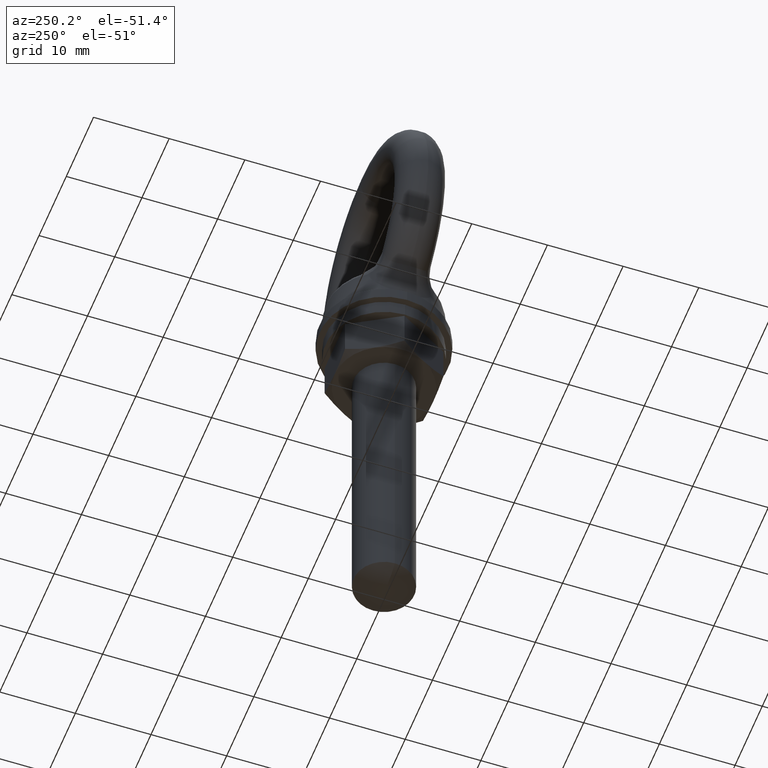
[diagram: clean part render]
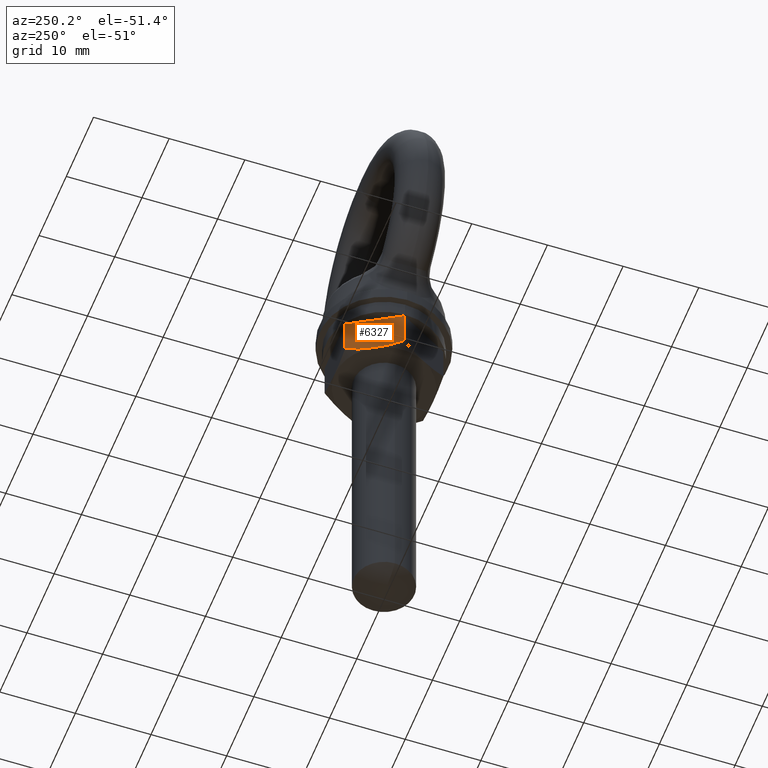
[diagram: same view with one face highlighted and labeled with its STEP entity id]
A machine part, auxiliary view. The second image highlights one B-rep face of the part: STEP entity #6327.
In plain terms, the highlighted planar face has unit normal (0.866, -0.5, 0).
Its self-contained STEP definition (entity closure, byte-faithful):
#21 = CARTESIAN_POINT ( 'NONE',  ( -3.752777000000000000, 6.500000000000000000, -25.51944234415325100 ) ) ;
#22 = CARTESIAN_POINT ( 'NONE',  ( -4.058962917549120400, 5.969670328293164900, -25.69621891020568300 ) ) ;
#23 = CARTESIAN_POINT ( 'NONE',  ( -4.367703386240748400, 5.434916043333029900, -25.84215141568065400 ) ) ;
#24 = CARTESIAN_POINT ( 'NONE',  ( -4.836380253384984200, 4.623143734930519800, -25.99384341492965700 ) ) ;
#25 = CARTESIAN_POINT ( 'NONE',  ( -4.993536284970479900, 4.350941449127765800, -26.03317350459036600 ) ) ;
#26 = CARTESIAN_POINT ( 'NONE',  ( -5.309965003255427100, 3.802870722590360900, -26.08627685027860800 ) ) ;
#27 = CARTESIAN_POINT ( 'NONE',  ( -5.469922194244476000, 3.525816685411266700, -26.09999906255262300 ) ) ;
#61 = CARTESIAN_POINT ( 'NONE',  ( -7.198600869568610800, 0.5316567916134915500, -25.69666159989901600 ) ) ;
#62 = CARTESIAN_POINT ( 'NONE',  ( -7.505552999999999900, 4.425311616899809600E-016, -25.51944270476554900 ) ) ;
#63 = CARTESIAN_POINT ( 'NONE',  ( -7.505552999999999900, 4.425311616899809600E-016, -25.51944270476554900 ) ) ;
#64 = B_SPLINE_CURVE_WITH_KNOTS ( 'NONE', 3,
 ( #62, #61, #73, #72, #71, #70 ),
 .UNSPECIFIED., .F., .F.,
 ( 4, 2, 4 ),
 ( 2.380732853425456700E-007, 0.001898835514487691100, 0.003797432955690040000 ),
 .UNSPECIFIED. ) ;
#65 = CARTESIAN_POINT ( 'NONE',  ( -5.629165405748550700, 3.249999513034385100, -26.09999900000000000 ) ) ;
#66 = CARTESIAN_POINT ( 'NONE',  ( -5.629165405748550700, 3.249999513034385100, -26.09999900000000000 ) ) ;
#69 = B_SPLINE_CURVE_WITH_KNOTS ( 'NONE', 3,
 ( #66, #27, #26, #25, #24, #23, #22, #21 ),
 .UNSPECIFIED., .F., .F.,
 ( 4, 2, 2, 4 ),
 ( 0.003797432955690040000, 0.004743183237692561600, 0.005688933519695082300, 0.007580434083700125400 ),
 .UNSPECIFIED. ) ;
#70 = CARTESIAN_POINT ( 'NONE',  ( -5.629165405748550700, 3.249999513034385100, -26.09999900000000000 ) ) ;
#71 = CARTESIAN_POINT ( 'NONE',  ( -5.948846516682197100, 2.696295260246219300, -26.09999906179119500 ) ) ;
#72 = CARTESIAN_POINT ( 'NONE',  ( -6.264553522101067500, 2.149474577311065700, -26.04466883029566300 ) ) ;
#73 = CARTESIAN_POINT ( 'NONE',  ( -6.889406537629291400, 1.067197190935371000, -25.84266372200051600 ) ) ;
#74 = LINE ( 'NONE', #108, #107 ) ;
#101 = DIRECTION ( 'NONE',  ( -0.4999999250822129700, -0.8660254470382388000, 0.0000000000000000000 ) ) ;
#102 = VECTOR ( 'NONE', #101, 1000.000000000000100 ) ;
#103 = CARTESIAN_POINT ( 'NONE',  ( -3.752777000000000000, 6.500000000000000000, -20.59999900000000000 ) ) ;
#104 = LINE ( 'NONE', #103, #102 ) ;
#105 = CARTESIAN_POINT ( 'NONE',  ( -7.505552999999999900, 0.0000000000000000000, -20.59999900000000000 ) ) ;
#106 = DIRECTION ( 'NONE',  ( 0.0000000000000000000, 0.0000000000000000000, -1.000000000000000000 ) ) ;
#107 = VECTOR ( 'NONE', #106, 1000.000000000000000 ) ;
#108 = CARTESIAN_POINT ( 'NONE',  ( -7.505552999999999900, 0.0000000000000000000, 973.9000009999999700 ) ) ;
#1770 = CARTESIAN_POINT ( 'NONE',  ( -3.752777000000000000, 6.500000000000000000, -20.59999900000000000 ) ) ;
#1771 = DIRECTION ( 'NONE',  ( 0.0000000000000000000, 0.0000000000000000000, -1.000000000000000000 ) ) ;
#1795 = FACE_OUTER_BOUND ( 'NONE', #6316, .T. ) ;
#1816 = CARTESIAN_POINT ( 'NONE',  ( -3.752777000000000000, 6.500000000000000000, 973.9000009999999700 ) ) ;
#1817 = AXIS2_PLACEMENT_3D ( 'NONE', #1816, #2318, #2316 ) ;
#1818 = PLANE ( 'NONE',  #1817 ) ;
#1862 = CARTESIAN_POINT ( 'NONE',  ( -3.752777000000000000, 6.500000000000000000, -25.51944234415325100 ) ) ;
#1863 = VECTOR ( 'NONE', #1771, 1000.000000000000000 ) ;
#1864 = CARTESIAN_POINT ( 'NONE',  ( -3.752777000000000000, 6.500000000000000000, 973.9000009999999700 ) ) ;
#1865 = LINE ( 'NONE', #1864, #1863 ) ;
#2316 = DIRECTION ( 'NONE',  ( 0.4999999250822129700, 0.8660254470382388000, 0.0000000000000000000 ) ) ;
#2318 = DIRECTION ( 'NONE',  ( 0.8660254470382389200, -0.4999999250822130300, 0.0000000000000000000 ) ) ;
#6190 = EDGE_CURVE ( 'NONE', #6191, #6192, #64, .T. ) ;
#6191 = VERTEX_POINT ( 'NONE', #63 ) ;
#6192 = VERTEX_POINT ( 'NONE', #65 ) ;
#6193 = ORIENTED_EDGE ( 'NONE', *, *, #6194, .F. ) ;
#6194 = EDGE_CURVE ( 'NONE', #6195, #6191, #74, .T. ) ;
#6195 = VERTEX_POINT ( 'NONE', #105 ) ;
#6196 = ORIENTED_EDGE ( 'NONE', *, *, #6197, .F. ) ;
#6197 = EDGE_CURVE ( 'NONE', #6311, #6195, #104, .T. ) ;
#6198 = ORIENTED_EDGE ( 'NONE', *, *, #6310, .T. ) ;
#6199 = ORIENTED_EDGE ( 'NONE', *, *, #6200, .F. ) ;
#6200 = EDGE_CURVE ( 'NONE', #6192, #6307, #69, .T. ) ;
#6307 = VERTEX_POINT ( 'NONE', #1862 ) ;
#6310 = EDGE_CURVE ( 'NONE', #6311, #6307, #1865, .T. ) ;
#6311 = VERTEX_POINT ( 'NONE', #1770 ) ;
#6316 = EDGE_LOOP ( 'NONE', ( #6328, #6193, #6196, #6198, #6199 ) ) ;
#6327 = ADVANCED_FACE ( 'NONE', ( #1795 ), #1818, .F. ) ;
#6328 = ORIENTED_EDGE ( 'NONE', *, *, #6190, .F. ) ;